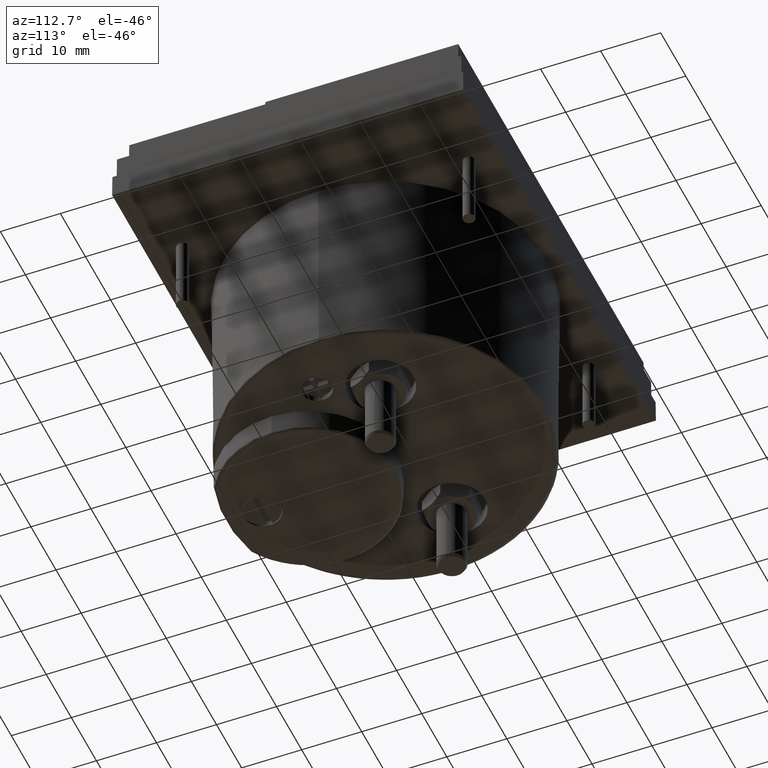
[diagram: clean part render]
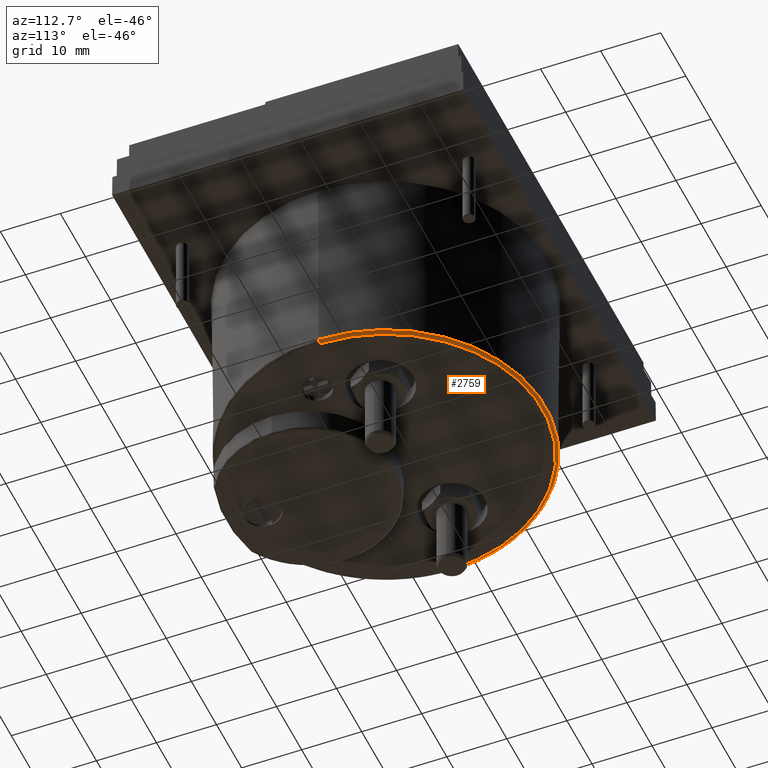
[diagram: same view with one face highlighted and labeled with its STEP entity id]
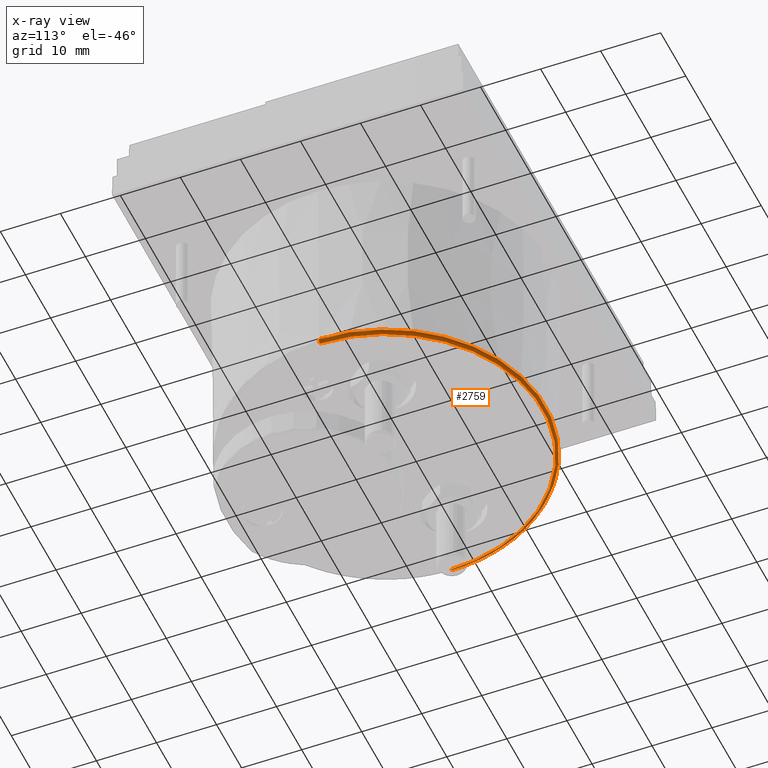
[diagram: x-ray of the same camera — body ghosted, the highlighted face saturated]
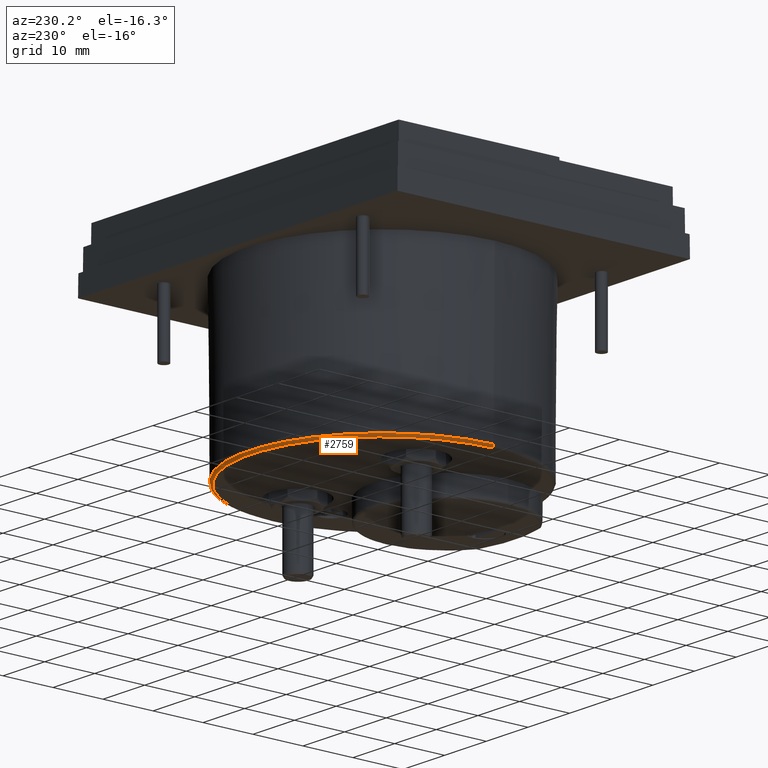
[diagram: same view with one face highlighted and labeled with its STEP entity id]
A machine part, auxiliary view. The second image highlights one B-rep face of the part: STEP entity #2759.
The next image is the same camera in x-ray: the body ghosted, the highlighted face saturated — about 1% of this face is hidden behind the body in this view.
A second angle (auxiliary view) of the same face is appended — the face is thin or edge-on in the first view.
In plain terms, the highlighted face is a freeform B-spline surface patch.
Its self-contained STEP definition (entity closure, byte-faithful):
#42 = VERTEX_POINT ( 'NONE', #1938 ) ;
#297 = EDGE_CURVE ( 'NONE', #5986, #5220, #1120, .T. ) ;
#308 = CARTESIAN_POINT ( 'NONE',  ( -1.048832233049750373, 0.8159055118110237759, -1.552927687706768367 ) ) ;
#341 = CARTESIAN_POINT ( 'NONE',  ( -1.029147943212889160, 2.874201398236803762, -1.572440944881889680 ) ) ;
#376 = CARTESIAN_POINT ( 'NONE',  ( 1.048732300252307681, 2.913370112315636806, -1.564378850607621940 ) ) ;
#431 = CARTESIAN_POINT ( 'NONE',  ( -1.029147943212889604, 0.8159055118110237759, -1.572440944881889680 ) ) ;
#487 = DIRECTION ( 'NONE',  ( 1.000000000000000000, 0.000000000000000000, 0.000000000000000000 ) ) ;
#739 = EDGE_LOOP ( 'NONE', ( #3692, #1937, #5035, #3472 ) ) ;
#830 = CARTESIAN_POINT ( 'NONE',  ( 1.029147943212891159, 2.874201398236803762, -1.572440944881889680 ) ) ;
#1120 = CIRCLE ( 'NONE', #4794, 0.01968503937007875723 ) ;
#1351 = CARTESIAN_POINT ( 'NONE',  ( 1.029148020633422256, 0.8159055118183087263, -1.572440944881889680 ) ) ;
#1734 = CARTESIAN_POINT ( 'NONE',  ( -1.048832233036990802, 0.8159055118110237759, -1.552927687706656901 ) ) ;
#1833 = EDGE_CURVE ( 'NONE', #5986, #4443, #5465, .T. ) ;
#1920 = CARTESIAN_POINT ( 'NONE',  ( -1.029148189749250708, 0.8159055118478393265, -1.572440944881889680 ) ) ;
#1937 = ORIENTED_EDGE ( 'NONE', *, *, #1833, .F. ) ;
#1938 = CARTESIAN_POINT ( 'NONE',  ( -1.029148189749250708, 0.8159055118478393265, -1.572440944881889680 ) ) ;
#1941 =( BOUNDED_CURVE ( )  B_SPLINE_CURVE ( 3, ( #1351, #5045, #2743, #1920 ),
 .UNSPECIFIED., .F., .T. ) 
 B_SPLINE_CURVE_WITH_KNOTS ( ( 4, 4 ),
 ( 0.2186841058652372327, 0.7813158941321930451 ),
 .UNSPECIFIED. ) 
 CURVE ( )  GEOMETRIC_REPRESENTATION_ITEM ( )  RATIONAL_B_SPLINE_CURVE ( ( 1.000000000000000000, 0.3333333333404752130, 0.3333333333404752130, 1.000000000000000000 ) ) 
 REPRESENTATION_ITEM ( '' )  );
#2536 = CARTESIAN_POINT ( 'NONE',  ( 8.195543980992795572E-16, 0.8159055118110236648, -1.552927687706768367 ) ) ;
#2639 = CARTESIAN_POINT ( 'NONE',  ( 1.029148020633422256, 0.8159055118183087263, -1.572440944881889680 ) ) ;
#2734 = CARTESIAN_POINT ( 'NONE',  ( 1.040599542155654200, 0.8159055118110236648, -1.572440944881891012 ) ) ;
#2743 = CARTESIAN_POINT ( 'NONE',  ( -1.029147943176074387, 2.874201398211111869, -1.572440944881889902 ) ) ;
#2759 = ADVANCED_FACE ( 'NONE', ( #3166 ), #5461, .T. ) ;
#2784 = DIRECTION ( 'NONE',  ( 0.000000000000000000, 1.000000000000000000, 0.000000000000000000 ) ) ;
#2799 = DIRECTION ( 'NONE',  ( -1.224646799147353207E-16, -1.000000000000000000, 0.000000000000000000 ) ) ;
#2857 = AXIS2_PLACEMENT_3D ( 'NONE', #2536, #3088, #4498 ) ;
#3088 = DIRECTION ( 'NONE',  ( 0.000000000000000000, 0.000000000000000000, 1.000000000000000000 ) ) ;
#3134 = CARTESIAN_POINT ( 'NONE',  ( 1.048832233036992578, 0.8159055118110236648, -1.552927687706656901 ) ) ;
#3166 = FACE_OUTER_BOUND ( 'NONE', #739, .T. ) ;
#3437 = EDGE_CURVE ( 'NONE', #5220, #42, #1941, .T. ) ;
#3472 = ORIENTED_EDGE ( 'NONE', *, *, #3437, .T. ) ;
#3683 = CARTESIAN_POINT ( 'NONE',  ( 1.029147943212891159, 0.8159055118110236648, -1.572440944881889680 ) ) ;
#3692 = ORIENTED_EDGE ( 'NONE', *, *, #4908, .F. ) ;
#4092 = CARTESIAN_POINT ( 'NONE',  ( -1.048732300252306127, 0.8159055118110237759, -1.564378850607621940 ) ) ;
#4215 = DIRECTION ( 'NONE',  ( -1.000000000000000000, 0.000000000000000000, 0.000000000000000000 ) ) ;
#4277 = CARTESIAN_POINT ( 'NONE',  ( -1.029147943212892935, 0.8159055118110237759, -1.552755905511810974 ) ) ;
#4371 = CARTESIAN_POINT ( 'NONE',  ( 1.048832233049751927, 0.8159055118110236648, -1.552927687706768367 ) ) ;
#4443 = VERTEX_POINT ( 'NONE', #308 ) ;
#4488 = CARTESIAN_POINT ( 'NONE',  ( -1.048732300252305683, 2.913370112315636806, -1.564378850607621940 ) ) ;
#4498 = DIRECTION ( 'NONE',  ( -1.000000000000000000, 0.000000000000000000, -7.553504680715287121E-15 ) ) ;
#4580 = CARTESIAN_POINT ( 'NONE',  ( 1.040599542155654200, 2.897104596122330289, -1.572440944881891678 ) ) ;
#4794 = AXIS2_PLACEMENT_3D ( 'NONE', #5080, #2784, #487 ) ;
#4908 = EDGE_CURVE ( 'NONE', #4443, #42, #5017, .T. ) ;
#5017 = CIRCLE ( 'NONE', #5404, 0.01968503937007875723 ) ;
#5035 = ORIENTED_EDGE ( 'NONE', *, *, #297, .T. ) ;
#5045 = CARTESIAN_POINT ( 'NONE',  ( 1.029147943205606097, 2.874201398196346791, -1.572440944881889902 ) ) ;
#5080 = CARTESIAN_POINT ( 'NONE',  ( 1.029147943212894489, 0.8159055118110236648, -1.552755905511810974 ) ) ;
#5220 = VERTEX_POINT ( 'NONE', #2639 ) ;
#5404 = AXIS2_PLACEMENT_3D ( 'NONE', #4277, #2799, #4215 ) ;
#5425 = CARTESIAN_POINT ( 'NONE',  ( 1.048832233036992356, 2.913569977885006157, -1.552927687706656901 ) ) ;
#5461 =( BOUNDED_SURFACE ( )  B_SPLINE_SURFACE ( 3, 3, ( 
 ( #3134, #5425, #5885, #1734 ),
 ( #5512, #376, #4488, #4092 ),
 ( #2734, #4580, #5482, #5940 ),
 ( #3683, #830, #341, #431 ) ),
 .UNSPECIFIED., .F., .F., .T. ) 
 B_SPLINE_SURFACE_WITH_KNOTS ( ( 4, 4 ),
 ( 4, 4 ),
 ( 0.000000000000000000, 1.000000000000000000 ),
 ( 0.000000000000000000, 1.000000000000000000 ),
 .UNSPECIFIED. ) 
 GEOMETRIC_REPRESENTATION_ITEM ( )  RATIONAL_B_SPLINE_SURFACE ( (
 ( 1.000000000000000000, 0.3333333333333334259, 0.3333333333333334259, 1.000000000000000000),
 ( 0.8067902504154359500, 0.2689300834718120758, 0.2689300834718120758, 0.8067902504154359500),
 ( 0.8067902504154359500, 0.2689300834718120758, 0.2689300834718120758, 0.8067902504154359500),
 ( 1.000000000000000000, 0.3333333333333334259, 0.3333333333333334259, 1.000000000000000000) ) ) 
 REPRESENTATION_ITEM ( '' )  SURFACE ( )  );
#5465 = CIRCLE ( 'NONE', #2857, 1.048832233049751261 ) ;
#5482 = CARTESIAN_POINT ( 'NONE',  ( -1.040599542155652424, 2.897104596122330289, -1.572440944881891678 ) ) ;
#5512 = CARTESIAN_POINT ( 'NONE',  ( 1.048732300252307459, 0.8159055118110236648, -1.564378850607621940 ) ) ;
#5885 = CARTESIAN_POINT ( 'NONE',  ( -1.048832233036990580, 2.913569977885006601, -1.552927687706656901 ) ) ;
#5940 = CARTESIAN_POINT ( 'NONE',  ( -1.040599542155652424, 0.8159055118110237759, -1.572440944881891012 ) ) ;
#5986 = VERTEX_POINT ( 'NONE', #4371 ) ;